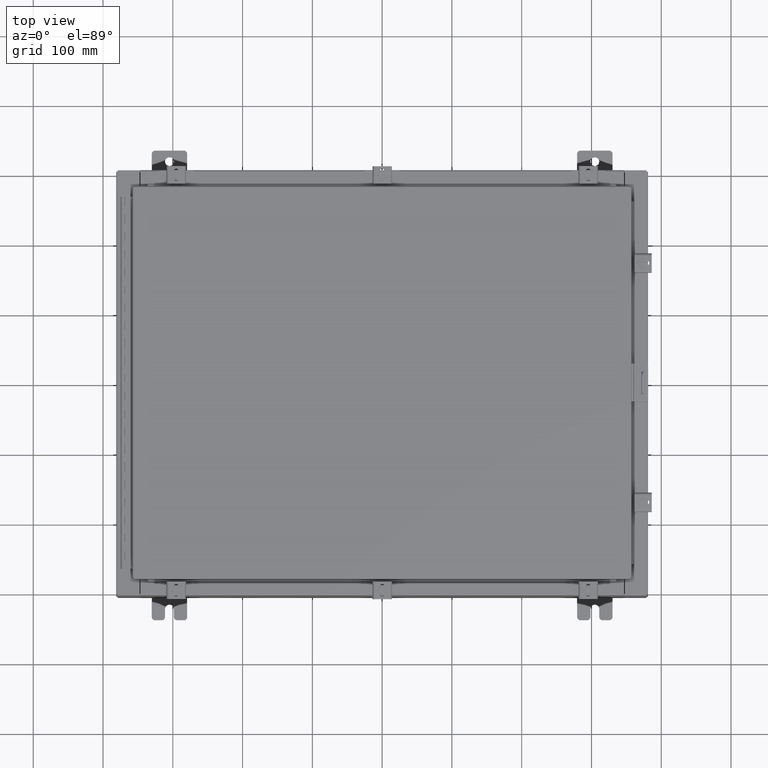
[diagram: clean part render]
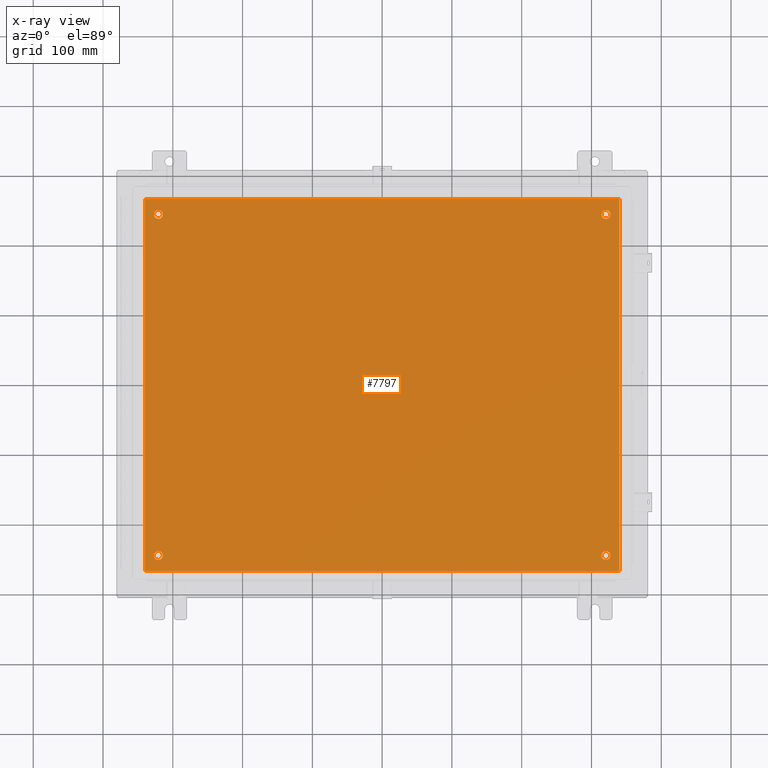
[diagram: x-ray — body ghosted, one internal face saturated and labeled with its STEP entity id]
A machine part, top view, then the same camera in x-ray: the body is ghosted and one INTERNAL B-rep face — a face not visible from any outside direction — is saturated and labeled: STEP entity #7797.
In plain terms, the highlighted planar face has unit normal (0, 0, -1).
Its self-contained STEP definition (entity closure, byte-faithful):
#49 = DIRECTION ( 'NONE',  ( -1.000000000000000000, 0.0000000000000000000, 0.0000000000000000000 ) ) ;
#182 = LINE ( 'NONE', #7733, #6044 ) ;
#284 = DIRECTION ( 'NONE',  ( 0.0000000000000000000, 1.000000000000000000, 0.0000000000000000000 ) ) ;
#1175 = EDGE_CURVE ( 'NONE', #4006, #11369, #15066, .T. ) ;
#1257 = DIRECTION ( 'NONE',  ( 0.0000000000000000000, -1.000000000000000000, 0.0000000000000000000 ) ) ;
#2474 = ORIENTED_EDGE ( 'NONE', *, *, #29345, .T. ) ;
#3010 = AXIS2_PLACEMENT_3D ( 'NONE', #25211, #10126, #27720 ) ;
#3022 = EDGE_LOOP ( 'NONE', ( #14582, #29761 ) ) ;
#3262 = DIRECTION ( 'NONE',  ( 0.0000000000000000000, 0.0000000000000000000, -1.000000000000000000 ) ) ;
#3316 = CARTESIAN_POINT ( 'NONE',  ( -13.38299999999999900, 10.50000000000000200, -0.1040000000000041900 ) ) ;
#3513 = EDGE_CURVE ( 'NONE', #7902, #31684, #8889, .T. ) ;
#3700 = DIRECTION ( 'NONE',  ( 1.000000000000000000, 0.0000000000000000000, 0.0000000000000000000 ) ) ;
#4006 = VERTEX_POINT ( 'NONE', #24852 ) ;
#5112 = LINE ( 'NONE', #5702, #17659 ) ;
#5242 = ORIENTED_EDGE ( 'NONE', *, *, #7665, .T. ) ;
#5256 = CARTESIAN_POINT ( 'NONE',  ( 12.62499999999999800, 9.625000000000001800, -0.1039999999999999800 ) ) ;
#5702 = CARTESIAN_POINT ( 'NONE',  ( -13.50000000000000000, 10.50000000000000200, -0.1039999999999999800 ) ) ;
#5808 = DIRECTION ( 'NONE',  ( -1.000000000000000000, -0.0000000000000000000, -0.0000000000000000000 ) ) ;
#6044 = VECTOR ( 'NONE', #284, 39.37007874015748100 ) ;
#6213 = CARTESIAN_POINT ( 'NONE',  ( -12.87499999999999600, 9.625000000000001800, -0.1039999999999999800 ) ) ;
#6308 = FACE_BOUND ( 'NONE', #24773, .T. ) ;
#7081 = DIRECTION ( 'NONE',  ( -0.0000000000000000000, -0.0000000000000000000, 1.000000000000000000 ) ) ;
#7665 = EDGE_CURVE ( 'NONE', #9773, #32514, #10244, .T. ) ;
#7733 = CARTESIAN_POINT ( 'NONE',  ( 13.38300000000000300, -10.50000000000000200, -0.1040000000000009100 ) ) ;
#7782 = DIRECTION ( 'NONE',  ( -1.000000000000000000, 0.0000000000000000000, 0.0000000000000000000 ) ) ;
#7797 = ADVANCED_FACE ( 'NONE', ( #6308, #19672, #32251, #14559, #25598 ), #15760, .T. ) ;
#7902 = VERTEX_POINT ( 'NONE', #6213 ) ;
#8055 = CIRCLE ( 'NONE', #3010, 0.2499999999999987000 ) ;
#8472 = EDGE_CURVE ( 'NONE', #21656, #14887, #26734, .T. ) ;
#8484 = AXIS2_PLACEMENT_3D ( 'NONE', #9180, #26774, #11705 ) ;
#8602 = VERTEX_POINT ( 'NONE', #19237 ) ;
#8715 = CARTESIAN_POINT ( 'NONE',  ( -13.38299999999999900, 10.50000000000000400, -0.1040000000000041900 ) ) ;
#8785 = LINE ( 'NONE', #23845, #28038 ) ;
#8889 = CIRCLE ( 'NONE', #11715, 0.2499999999999987000 ) ;
#8957 = VERTEX_POINT ( 'NONE', #28126 ) ;
#9180 = CARTESIAN_POINT ( 'NONE',  ( 12.62499999999999800, -9.625000000000001800, -0.1039999999999999800 ) ) ;
#9773 = VERTEX_POINT ( 'NONE', #20735 ) ;
#10126 = DIRECTION ( 'NONE',  ( -0.0000000000000000000, -0.0000000000000000000, 1.000000000000000000 ) ) ;
#10244 = CIRCLE ( 'NONE', #27941, 0.2499999999999987000 ) ;
#10318 = CARTESIAN_POINT ( 'NONE',  ( 12.62499999999999800, -9.625000000000001800, -0.1039999999999999800 ) ) ;
#10332 = EDGE_CURVE ( 'NONE', #8602, #8957, #182, .T. ) ;
#10933 = EDGE_LOOP ( 'NONE', ( #2474, #13579 ) ) ;
#11001 = DIRECTION ( 'NONE',  ( -0.0000000000000000000, -0.0000000000000000000, 1.000000000000000000 ) ) ;
#11369 = VERTEX_POINT ( 'NONE', #19405 ) ;
#11705 = DIRECTION ( 'NONE',  ( -1.000000000000000000, 0.0000000000000000000, 0.0000000000000000000 ) ) ;
#11715 = AXIS2_PLACEMENT_3D ( 'NONE', #14734, #32307, #17224 ) ;
#11822 = CARTESIAN_POINT ( 'NONE',  ( -12.37499999999999800, 9.625000000000001800, -0.1039999999999999800 ) ) ;
#12562 = VECTOR ( 'NONE', #1257, 39.37007874015748100 ) ;
#12731 = CARTESIAN_POINT ( 'NONE',  ( 12.87499999999999600, 9.625000000000001800, -0.1039999999999999800 ) ) ;
#12843 = DIRECTION ( 'NONE',  ( -1.000000000000000000, 0.0000000000000000000, 0.0000000000000000000 ) ) ;
#13258 = CARTESIAN_POINT ( 'NONE',  ( 0.0000000000000000000, 0.0000000000000000000, -0.1039999999999999800 ) ) ;
#13579 = ORIENTED_EDGE ( 'NONE', *, *, #1175, .T. ) ;
#14559 = FACE_BOUND ( 'NONE', #3022, .T. ) ;
#14582 = ORIENTED_EDGE ( 'NONE', *, *, #28332, .T. ) ;
#14734 = CARTESIAN_POINT ( 'NONE',  ( -12.62499999999999800, 9.625000000000001800, -0.1039999999999999800 ) ) ;
#14887 = VERTEX_POINT ( 'NONE', #29285 ) ;
#15050 = DIRECTION ( 'NONE',  ( -0.0000000000000000000, -0.0000000000000000000, 1.000000000000000000 ) ) ;
#15066 = CIRCLE ( 'NONE', #8484, 0.2499999999999987000 ) ;
#15087 = CIRCLE ( 'NONE', #23267, 0.2499999999999987000 ) ;
#15265 = EDGE_LOOP ( 'NONE', ( #19630, #15926, #29529, #23608 ) ) ;
#15760 = PLANE ( 'NONE',  #20600 ) ;
#15926 = ORIENTED_EDGE ( 'NONE', *, *, #8472, .F. ) ;
#16617 = ORIENTED_EDGE ( 'NONE', *, *, #30844, .T. ) ;
#17224 = DIRECTION ( 'NONE',  ( -1.000000000000000000, 0.0000000000000000000, 0.0000000000000000000 ) ) ;
#17659 = VECTOR ( 'NONE', #5808, 39.37007874015748100 ) ;
#18525 = AXIS2_PLACEMENT_3D ( 'NONE', #30111, #15050, #49 ) ;
#19112 = ORIENTED_EDGE ( 'NONE', *, *, #30610, .T. ) ;
#19237 = CARTESIAN_POINT ( 'NONE',  ( 13.38300000000000100, -10.50000000000000000, -0.1039999999999999800 ) ) ;
#19405 = CARTESIAN_POINT ( 'NONE',  ( 12.87499999999999600, -9.625000000000001800, -0.1039999999999999800 ) ) ;
#19622 = AXIS2_PLACEMENT_3D ( 'NONE', #10318, #27907, #12843 ) ;
#19630 = ORIENTED_EDGE ( 'NONE', *, *, #31552, .F. ) ;
#19672 = FACE_BOUND ( 'NONE', #10933, .T. ) ;
#20348 = ORIENTED_EDGE ( 'NONE', *, *, #29019, .T. ) ;
#20600 = AXIS2_PLACEMENT_3D ( 'NONE', #13258, #3262, #20855 ) ;
#20735 = CARTESIAN_POINT ( 'NONE',  ( 12.37499999999999800, 9.625000000000001800, -0.1039999999999999800 ) ) ;
#20855 = DIRECTION ( 'NONE',  ( -1.000000000000000000, 0.0000000000000000000, -0.0000000000000000000 ) ) ;
#21656 = VERTEX_POINT ( 'NONE', #3316 ) ;
#21728 = CARTESIAN_POINT ( 'NONE',  ( -12.87499999999999600, -9.625000000000001800, -0.1039999999999999800 ) ) ;
#22182 = CARTESIAN_POINT ( 'NONE',  ( -12.62499999999999800, 9.625000000000001800, -0.1039999999999999800 ) ) ;
#22223 = EDGE_CURVE ( 'NONE', #8957, #21656, #5112, .T. ) ;
#22863 = DIRECTION ( 'NONE',  ( -0.0000000000000000000, -0.0000000000000000000, 1.000000000000000000 ) ) ;
#23245 = EDGE_LOOP ( 'NONE', ( #20348, #5242 ) ) ;
#23267 = AXIS2_PLACEMENT_3D ( 'NONE', #26077, #11001, #28558 ) ;
#23608 = ORIENTED_EDGE ( 'NONE', *, *, #10332, .F. ) ;
#23845 = CARTESIAN_POINT ( 'NONE',  ( -13.49999999999999500, -10.50000000000000000, -0.1039999999999999800 ) ) ;
#24257 = VERTEX_POINT ( 'NONE', #21728 ) ;
#24324 = CIRCLE ( 'NONE', #18525, 0.2499999999999987000 ) ;
#24687 = DIRECTION ( 'NONE',  ( -1.000000000000000000, 0.0000000000000000000, 0.0000000000000000000 ) ) ;
#24773 = EDGE_LOOP ( 'NONE', ( #16617, #19112 ) ) ;
#24852 = CARTESIAN_POINT ( 'NONE',  ( 12.37499999999999800, -9.625000000000001800, -0.1039999999999999800 ) ) ;
#25211 = CARTESIAN_POINT ( 'NONE',  ( -12.62499999999999800, -9.625000000000001800, -0.1039999999999999800 ) ) ;
#25523 = AXIS2_PLACEMENT_3D ( 'NONE', #22182, #7081, #24687 ) ;
#25598 = FACE_OUTER_BOUND ( 'NONE', #15265, .T. ) ;
#26077 = CARTESIAN_POINT ( 'NONE',  ( -12.62499999999999800, -9.625000000000001800, -0.1039999999999999800 ) ) ;
#26734 = LINE ( 'NONE', #8715, #12562 ) ;
#26774 = DIRECTION ( 'NONE',  ( -0.0000000000000000000, -0.0000000000000000000, 1.000000000000000000 ) ) ;
#27720 = DIRECTION ( 'NONE',  ( -1.000000000000000000, 0.0000000000000000000, 0.0000000000000000000 ) ) ;
#27907 = DIRECTION ( 'NONE',  ( -0.0000000000000000000, -0.0000000000000000000, 1.000000000000000000 ) ) ;
#27941 = AXIS2_PLACEMENT_3D ( 'NONE', #5256, #22863, #7782 ) ;
#28038 = VECTOR ( 'NONE', #3700, 39.37007874015748100 ) ;
#28126 = CARTESIAN_POINT ( 'NONE',  ( 13.38300000000000400, 10.50000000000000200, -0.1039999999999999800 ) ) ;
#28185 = VERTEX_POINT ( 'NONE', #31485 ) ;
#28332 = EDGE_CURVE ( 'NONE', #31684, #7902, #29841, .T. ) ;
#28558 = DIRECTION ( 'NONE',  ( -1.000000000000000000, 0.0000000000000000000, 0.0000000000000000000 ) ) ;
#29019 = EDGE_CURVE ( 'NONE', #32514, #9773, #24324, .T. ) ;
#29285 = CARTESIAN_POINT ( 'NONE',  ( -13.38299999999999900, -10.50000000000000000, -0.1040000000000041900 ) ) ;
#29345 = EDGE_CURVE ( 'NONE', #11369, #4006, #29772, .T. ) ;
#29529 = ORIENTED_EDGE ( 'NONE', *, *, #22223, .F. ) ;
#29761 = ORIENTED_EDGE ( 'NONE', *, *, #3513, .T. ) ;
#29772 = CIRCLE ( 'NONE', #19622, 0.2499999999999987000 ) ;
#29841 = CIRCLE ( 'NONE', #25523, 0.2499999999999987000 ) ;
#30111 = CARTESIAN_POINT ( 'NONE',  ( 12.62499999999999800, 9.625000000000001800, -0.1039999999999999800 ) ) ;
#30610 = EDGE_CURVE ( 'NONE', #24257, #28185, #8055, .T. ) ;
#30844 = EDGE_CURVE ( 'NONE', #28185, #24257, #15087, .T. ) ;
#31485 = CARTESIAN_POINT ( 'NONE',  ( -12.37499999999999800, -9.625000000000001800, -0.1039999999999999800 ) ) ;
#31552 = EDGE_CURVE ( 'NONE', #14887, #8602, #8785, .T. ) ;
#31684 = VERTEX_POINT ( 'NONE', #11822 ) ;
#32251 = FACE_BOUND ( 'NONE', #23245, .T. ) ;
#32307 = DIRECTION ( 'NONE',  ( -0.0000000000000000000, -0.0000000000000000000, 1.000000000000000000 ) ) ;
#32514 = VERTEX_POINT ( 'NONE', #12731 ) ;